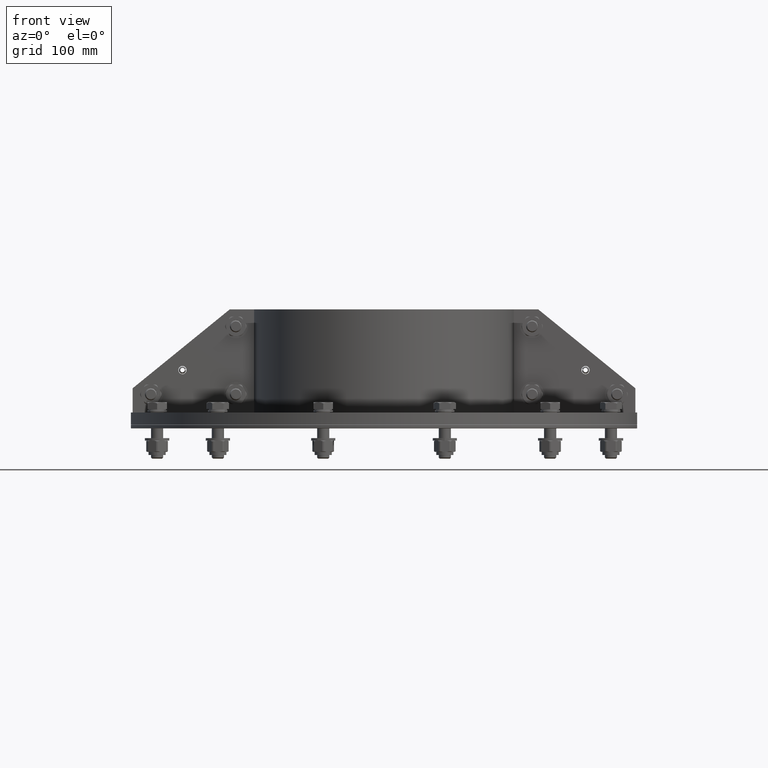
[diagram: clean part render]
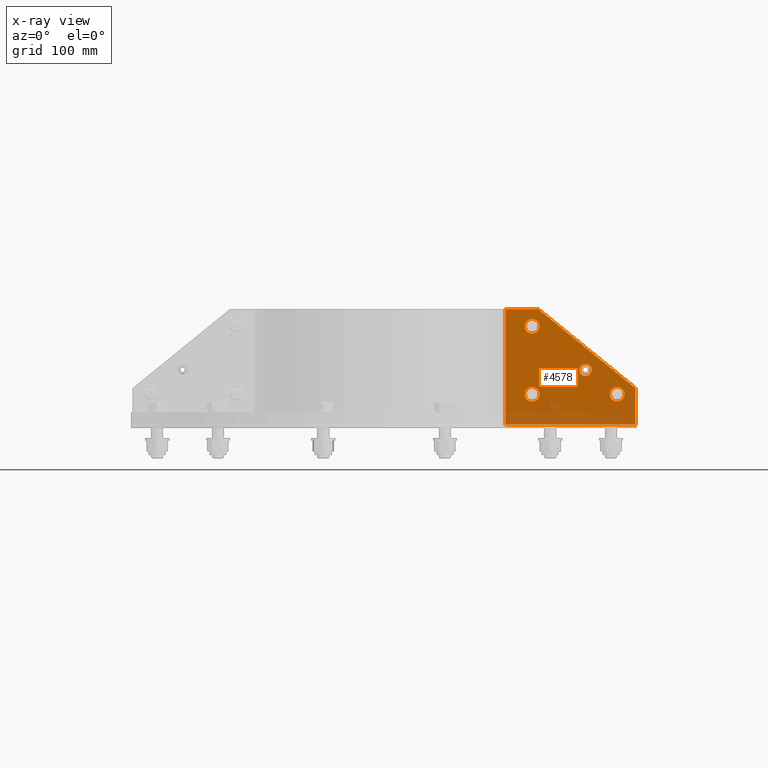
[diagram: x-ray — body ghosted, one internal face saturated and labeled with its STEP entity id]
A machine part, front view, then the same camera in x-ray: the body is ghosted and one INTERNAL B-rep face — a face not visible from any outside direction — is saturated and labeled: STEP entity #4578.
In plain terms, the highlighted planar face has unit normal (-0, 1, 0).
Its self-contained STEP definition (entity closure, byte-faithful):
#4292=CARTESIAN_POINT('',(-16.0,81.0,0.4));
#4293=VERTEX_POINT('',#4292);
#4294=CARTESIAN_POINT('',(-22.0,81.0,0.4));
#4295=DIRECTION('',(0.0,0.0,-1.0));
#4296=DIRECTION('',(-1.0,0.0,0.0));
#4297=AXIS2_PLACEMENT_3D('',#4294,#4295,#4296);
#4298=CIRCLE('',#4297,6.000000000000001);
#4299=EDGE_CURVE('',#4293,#4293,#4298,.T.);
#4320=CARTESIAN_POINT('',(-16.0,25.0,0.4));
#4321=VERTEX_POINT('',#4320);
#4322=CARTESIAN_POINT('',(-22.0,25.0,0.4));
#4323=DIRECTION('',(0.0,0.0,-1.0));
#4324=DIRECTION('',(-1.0,0.0,0.0));
#4325=AXIS2_PLACEMENT_3D('',#4322,#4323,#4324);
#4326=CIRCLE('',#4325,6.000000000000001);
#4327=EDGE_CURVE('',#4321,#4321,#4326,.T.);
#4348=CARTESIAN_POINT('',(-86.000000000000014,25.0,0.4));
#4349=VERTEX_POINT('',#4348);
#4350=CARTESIAN_POINT('',(-92.000000000000014,25.0,0.4));
#4351=DIRECTION('',(0.0,0.0,-1.0));
#4352=DIRECTION('',(-1.0,0.0,0.0));
#4353=AXIS2_PLACEMENT_3D('',#4350,#4351,#4352);
#4354=CIRCLE('',#4353,6.000000000000001);
#4355=EDGE_CURVE('',#4349,#4349,#4354,.T.);
#4376=CARTESIAN_POINT('',(-61.000000000000007,45.0,0.4));
#4377=VERTEX_POINT('',#4376);
#4378=CARTESIAN_POINT('',(-66.0,45.0,0.4));
#4379=DIRECTION('',(0.0,0.0,-1.0));
#4380=DIRECTION('',(-1.0,0.0,0.0));
#4381=AXIS2_PLACEMENT_3D('',#4378,#4379,#4380);
#4382=CIRCLE('',#4381,5.0);
#4383=EDGE_CURVE('',#4377,#4377,#4382,.T.);
#4404=CARTESIAN_POINT('',(-107.00000000000001,-1.310372E-014,0.4));
#4405=VERTEX_POINT('',#4404);
#4406=CARTESIAN_POINT('',(-107.00000000000003,29.999999999999986,0.4));
#4407=VERTEX_POINT('',#4406);
#4408=CARTESIAN_POINT('',(-107.00000000000001,-1.310372E-014,0.4));
#4409=DIRECTION('',(0.0,1.0,0.0));
#4410=VECTOR('',#4409,30.0);
#4411=LINE('',#4408,#4410);
#4412=EDGE_CURVE('',#4405,#4407,#4411,.T.);
#4444=CARTESIAN_POINT('',(-27.000000000000032,95.0,0.4));
#4445=VERTEX_POINT('',#4444);
#4446=CARTESIAN_POINT('',(-107.00000000000003,29.999999999999986,0.4));
#4447=DIRECTION('',(0.776114000116266,0.630592625094466,0.0));
#4448=VECTOR('',#4447,103.07764064044154);
#4449=LINE('',#4446,#4448);
#4450=EDGE_CURVE('',#4407,#4445,#4449,.T.);
#4475=CARTESIAN_POINT('',(-2.908536E-014,95.0,0.4));
#4476=VERTEX_POINT('',#4475);
#4477=CARTESIAN_POINT('',(-27.000000000000032,95.0,0.4));
#4478=DIRECTION('',(1.0,0.0,0.0));
#4479=VECTOR('',#4478,27.0);
#4480=LINE('',#4477,#4479);
#4481=EDGE_CURVE('',#4445,#4476,#4480,.T.);
#4506=CARTESIAN_POINT('',(0.0,0.0,0.4));
#4507=VERTEX_POINT('',#4506);
#4508=CARTESIAN_POINT('',(-2.908536E-014,95.0,0.4));
#4509=DIRECTION('',(0.0,-1.0,0.0));
#4510=VECTOR('',#4509,95.0);
#4511=LINE('',#4508,#4510);
#4512=EDGE_CURVE('',#4476,#4507,#4511,.T.);
#4537=CARTESIAN_POINT('',(0.0,0.0,0.4));
#4538=DIRECTION('',(-1.0,0.0,0.0));
#4539=VECTOR('',#4538,107.00000000000001);
#4540=LINE('',#4537,#4539);
#4541=EDGE_CURVE('',#4507,#4405,#4540,.T.);
#4554=CARTESIAN_POINT('',(-44.756152007193506,38.582477822485181,0.4));
#4555=DIRECTION('',(0.0,0.0,1.0));
#4556=DIRECTION('',(1.0,0.0,0.0));
#4557=AXIS2_PLACEMENT_3D('',#4554,#4555,#4556);
#4558=PLANE('',#4557);
#4559=ORIENTED_EDGE('',*,*,#4412,.F.);
#4560=ORIENTED_EDGE('',*,*,#4541,.F.);
#4561=ORIENTED_EDGE('',*,*,#4512,.F.);
#4562=ORIENTED_EDGE('',*,*,#4481,.F.);
#4563=ORIENTED_EDGE('',*,*,#4450,.F.);
#4564=EDGE_LOOP('',(#4559,#4560,#4561,#4562,#4563));
#4565=FACE_OUTER_BOUND('',#4564,.T.);
#4566=ORIENTED_EDGE('',*,*,#4299,.T.);
#4567=EDGE_LOOP('',(#4566));
#4568=FACE_BOUND('',#4567,.T.);
#4569=ORIENTED_EDGE('',*,*,#4327,.T.);
#4570=EDGE_LOOP('',(#4569));
#4571=FACE_BOUND('',#4570,.T.);
#4572=ORIENTED_EDGE('',*,*,#4355,.T.);
#4573=EDGE_LOOP('',(#4572));
#4574=FACE_BOUND('',#4573,.T.);
#4575=ORIENTED_EDGE('',*,*,#4383,.T.);
#4576=EDGE_LOOP('',(#4575));
#4577=FACE_BOUND('',#4576,.T.);
#4578=ADVANCED_FACE('',(#4565,#4568,#4571,#4574,#4577),#4558,.T.);